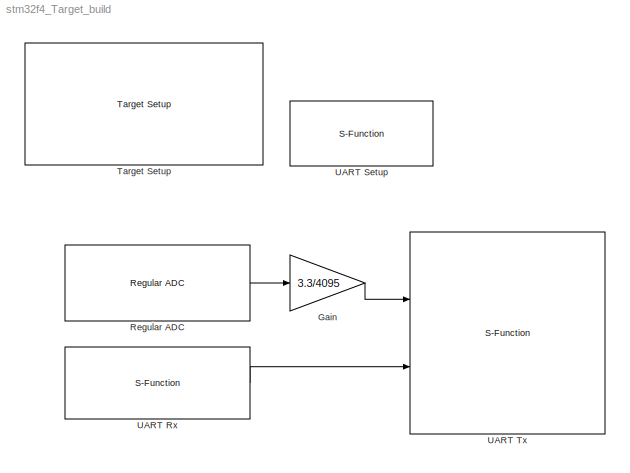
MODEL stm32f4_Target_build
KIND model
CONFIG PreLoadFcn = waijung.modelPreload; % Required for working with Waijung Blockset. Do not remove.
BLOCK [Gain] Gain
  Gain = 3.3/4095
  OutDataTypeStr = single
  ParamDataTypeStr = single
  SID = 1
  SaturateOnIntegerOverflow = off
BLOCK [Reference] Regular ADC  REF=stm32f4_adc_lib/Regular ADC
  Ports = [0, 1]
  SID = 2
  SourceBlock = stm32f4_adc_lib/Regular ADC
  SourceType = stm32f4_regular_adc
  adcmodule = 1
  blockid = RegularADC
  chsamplingtime = Auto
  chsamplingtimestr = ADC_SampleTime_480Cycles
  cinputportlabel = 0
  coutputportlabel = Out1, Out2
  enablecustomportlabel = off
  outputdatatype = Single
  pinstr = GPIO_Pin_5
  prescaler = 2
  prescalerstr = ADC_Prescaler_Div2
  read_an0 = off
  read_an1 = off
  read_an10 = off
  read_an11 = off
  read_an12 = off
  read_an13 = off
  read_an14 = off
  read_an15 = off
  read_an16 = off
  read_an17 = off
  read_an18 = off
  read_an2 = off
  read_an3 = off
  read_an4 = off
  read_an5 = on
  read_an6 = off
  read_an7 = off
  read_an8 = off
  read_an9 = off
  sampletime = 0.001
  usedpinarray = [0  0  0  0  0  1  0  0  0  0  0  0  0  0  0  0  0  0  0]
  usedpinidarray = [5]
  usedpinidcount = 1
  usedportidarray = [0]
BLOCK [Reference] Target Setup  REF=stm32f4_device_config_lib/Target Setup
  Ports = []
  Priority = 100
  SID = 3
  SourceBlock = stm32f4_device_config_lib/Target Setup
  SourceType = stm32f4_target_setup
  assemblercontrolstr = $(patsubst %, -I%, .) -mcpu=cortex-m4 -mthumb -mthumb-interwork -mfloat-abi=hard -mfpu=fpv4-sp-d16 -ffast-math -Wall -Wextra -Ofast -Wa,-amhls=$(<:.s=.lst) -D__STACK_SIZE=$(STACK_SIZE) -D__HEAP_SIZE=$(HEAP_SIZE)
  blockid = TargetSetup
  clockconfig = HSEOSC-8MHz
  compiler = GNU ARM
  compilercontrolstr = $(patsubst %, -I%, .) -mcpu=cortex-m4 -mthumb -mthumb-interwork -mfloat-abi=hard -mfpu=fpv4-sp-d16 -ffast-math -Wall -Wextra -Ofast
  editctrlstr = on
  enableautocompiledownload = on
  execprofile = None
  flashlength = 1024k
  flashorigin = 0x8000000
  fullchiperase = off
  hclk = 168000000
  heapsize = 0x200
  hseval = 8000000
  lastprofileruart = 1
  linkercontrolstr = -T$(LD_SCRIPT) -g -Wl,-Map=$(MAP),--cref,--no-warn-mismatch -mcpu=cortex-m4 -mthumb -mthumb-interwork -mfloat-abi=hard -mfpu=fpv4-sp-d16 -specs=nosys.specs
  manualsetsampletime = off
  mcu = STM32F407VG (LQFP100)
  mcustr = STM32F407VG
  previous_compiler = GNU ARM
  profilerbaud = 115200
  profilerinitstr = 0.001,168000000,168000,115200,0
  profilertxpin = D8
  profileruart = 1
  programmerinterface = ST-Link
  ramlength = 128k
  ramorigin = 0x20000000
  runafterdownload = on
  sampletime = 0.001
  showmemoryconfiguration = off
  stacksize = 0x400
  system_stm32f4xx_c_path = <path>
  systickreloadvalue = 168000
  useextram = off
BLOCK [S-Function] UART Rx
  EnableBusSupport = off
  FunctionName = stm32f4_usart
  Parameters = configuration,uartmodule,transfer,baudrate,inputtype,outputtype,confstr,binheaderarray,binterminatorarray,asciiheader,asciiterminator,bindatalength,packetmode,varname,sampletime,sampletimestr,blockid  <repeated x3 — deduplicated; at blocks: UART Rx, UART Setup, UART Tx>
  Ports = [0, 1]
  Priority = 1
  SID = 4
BLOCK [S-Function] UART Setup
  EnableBusSupport = off
  FunctionName = stm32f4_usart
  Ports = []
  Priority = 1
  SID = 5
BLOCK [S-Function] UART Tx
  EnableBusSupport = off
  FunctionName = stm32f4_usart
  Ports = [2]
  Priority = 1
  SID = 6
LINE Gain:1 -> UART Tx:1
LINE Regular ADC:1 -> Gain:1
LINE UART Rx:1 -> UART Tx:2
note: 1 file-system path scrubbed to <path> (not preserved elsewhere — flat text is the only slx artifact)
